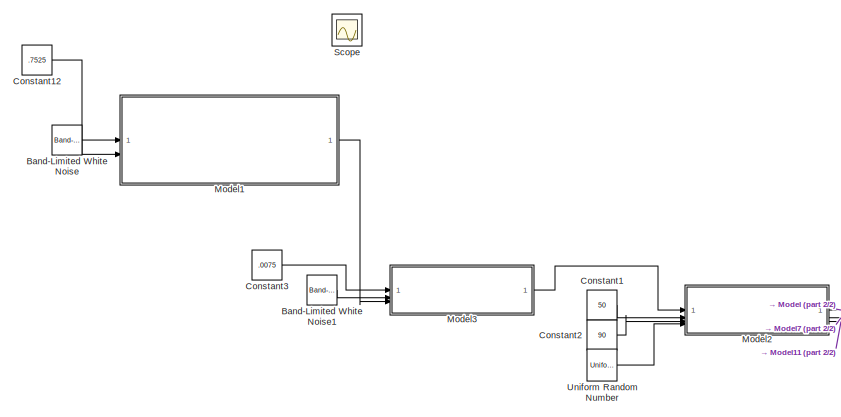
[diagram: root canvas - part 1/2, top left region]
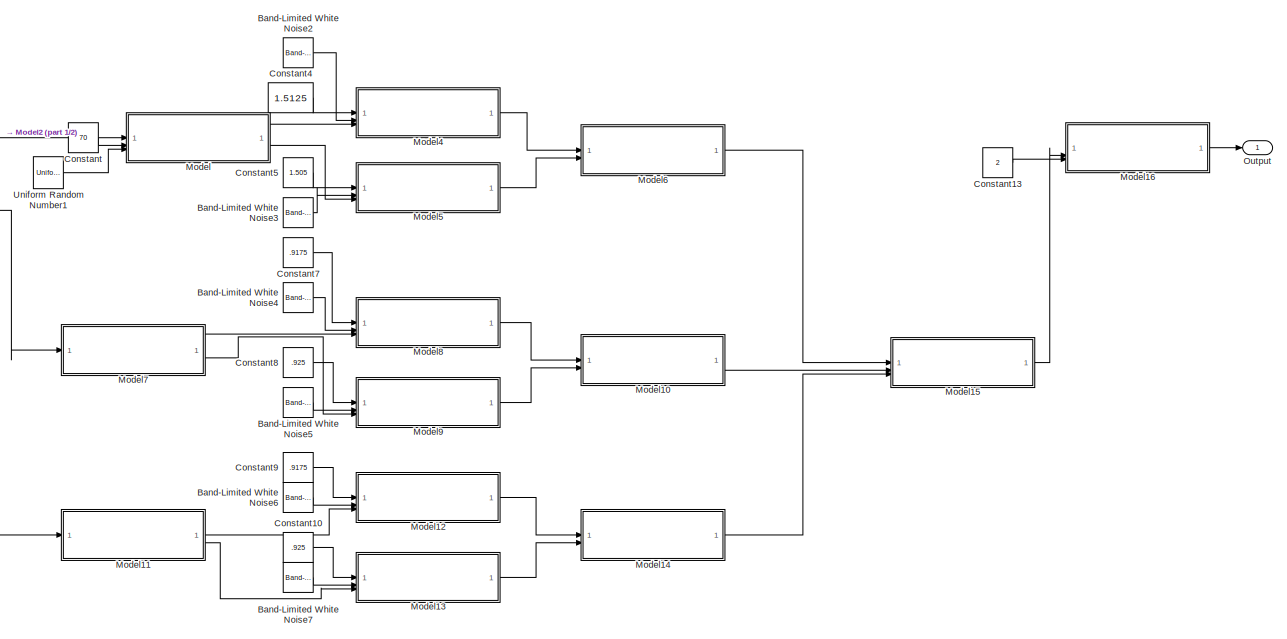
[diagram: root canvas - part 2/2, right side, full height]
MODEL slx_aa888e258abc
KIND model
CONFIG AbsTol = auto
CONFIG EnableMultiTasking = off
CONFIG FixedStep = auto
CONFIG MaxStep = auto
CONFIG MinStep = auto
CONFIG RelTol = 1e-3
CONFIG SampleTimeConstraint = Unconstrained
CONFIG SolverName = VariableStepAuto
CONFIG StartTime = 0.0
CONFIG StopTime = 10.0
BLOCK [Reference] Band-Limited White Noise  REF=simulink/Sources/Band-Limited
White Noise
  SourceBlock = simulink/Sources/Band-Limited\nWhite Noise
  SourceType = Band-Limited White Noise.
BLOCK [Reference] Band-Limited White Noise1  REF=simulink/Sources/Band-Limited
White Noise
  SourceBlock = simulink/Sources/Band-Limited\nWhite Noise
  SourceType = Band-Limited White Noise.
BLOCK [Reference] Band-Limited White Noise2  REF=simulink/Sources/Band-Limited
White Noise
  SourceBlock = simulink/Sources/Band-Limited\nWhite Noise
  SourceType = Band-Limited White Noise.
BLOCK [Reference] Band-Limited White Noise3  REF=simulink/Sources/Band-Limited
White Noise
  SourceBlock = simulink/Sources/Band-Limited\nWhite Noise
  SourceType = Band-Limited White Noise.
BLOCK [Reference] Band-Limited White Noise4  REF=simulink/Sources/Band-Limited
White Noise
  SourceBlock = simulink/Sources/Band-Limited\nWhite Noise
  SourceType = Band-Limited White Noise.
BLOCK [Reference] Band-Limited White Noise5  REF=simulink/Sources/Band-Limited
White Noise
  SourceBlock = simulink/Sources/Band-Limited\nWhite Noise
  SourceType = Band-Limited White Noise.
BLOCK [Reference] Band-Limited White Noise6  REF=simulink/Sources/Band-Limited
White Noise
  SourceBlock = simulink/Sources/Band-Limited\nWhite Noise
  SourceType = Band-Limited White Noise.
BLOCK [Reference] Band-Limited White Noise7  REF=simulink/Sources/Band-Limited
White Noise
  SourceBlock = simulink/Sources/Band-Limited\nWhite Noise
  SourceType = Band-Limited White Noise.
BLOCK [Constant] Constant
  Value = 70
BLOCK [Constant] Constant1
  Value = 50
BLOCK [Constant] Constant10
  Value = .925
BLOCK [Constant] Constant12
  Value = .7525
BLOCK [Constant] Constant13
  Value = 2
BLOCK [Constant] Constant2
  Value = 90
BLOCK [Constant] Constant3
  Value = .0075
BLOCK [Constant] Constant4
  Value = 1.5125
BLOCK [Constant] Constant5
  Value = 1.505
BLOCK [Constant] Constant7
  Value = .9175
BLOCK [Constant] Constant8
  Value = .925
BLOCK [Constant] Constant9
  Value = .9175
BLOCK [ModelReference] Model
  ModelNameDialog = mseCaseOfTwo.slx
  ModelReferenceVersion = 3.9
BLOCK [ModelReference] Model1
  ModelNameDialog = mseDelay.slx
  ModelReferenceVersion = 3.3
BLOCK [ModelReference] Model10
  ModelNameDialog = mseSplitMuxOfTwo.slx
  ModelReferenceVersion = 3.2
BLOCK [ModelReference] Model11
  ModelNameDialog = msePardoSplitOfTwo.slx
  ModelReferenceVersion = 3.2
BLOCK [ModelReference] Model12
  ModelNameDialog = mseDelay.slx
  ModelReferenceVersion = 3.3
BLOCK [ModelReference] Model13
  ModelNameDialog = mseDelay.slx
  ModelReferenceVersion = 3.3
BLOCK [ModelReference] Model14
  ModelNameDialog = msePardolMuxOfTwo.slx
  ModelReferenceVersion = 3.3
BLOCK [ModelReference] Model15
  ModelNameDialog = mseCaseMuxOfThree.slx
  ModelReferenceVersion = 3.1
BLOCK [ModelReference] Model16
  ModelNameDialog = mseLoop.slx
  ModelReferenceVersion = 3.1
BLOCK [ModelReference] Model2
  ModelNameDialog = mseCaseOfThree.slx
  ModelReferenceVersion = 3.7
BLOCK [ModelReference] Model3
  ModelNameDialog = mseDelay.slx
  ModelReferenceVersion = 3.3
BLOCK [ModelReference] Model4
  ModelNameDialog = mseDelay.slx
  ModelReferenceVersion = 3.3
BLOCK [ModelReference] Model5
  ModelNameDialog = mseDelay.slx
  ModelReferenceVersion = 3.3
BLOCK [ModelReference] Model6
  ModelNameDialog = mseCaseMuxOfTwo.slx
  ModelReferenceVersion = 3.0
BLOCK [ModelReference] Model7
  ModelNameDialog = msePardoSplitOfTwo.slx
  ModelReferenceVersion = 3.2
BLOCK [ModelReference] Model8
  ModelNameDialog = mseDelay.slx
  ModelReferenceVersion = 3.3
BLOCK [ModelReference] Model9
  ModelNameDialog = mseDelay.slx
  ModelReferenceVersion = 3.3
BLOCK [Outport] Output
BLOCK [Scope] Scope
  Floating = off
  IOType = viewer
  NumInputPorts = 1
  ScopeSpecificationString = Simulink.scopes.TimeScopeBlockCfg('CurrentConfiguration', extmgr.ConfigurationSet(extmgr.Configuration('Core','General UI',true),extmgr.Configuration('Core','Source UI',true),extmgr.Configuration('Sources','WiredSimulink',true),extmgr.Configuration('Visuals','Time Domain',true,'SerializedDisplays',{struct('MinYLimReal','3.13689','MaxYLimReal','4.80452','YLabelReal','','MinYLimMag','3.13689','MaxYL...<+1597ch>
BLOCK [UniformRandomNumber] Uniform Random Number
  Maximum = 100
  Minimum = 0
  SampleTime = 0.1
BLOCK [UniformRandomNumber] Uniform Random Number1
  Maximum = 100
  Minimum = 0
  SampleTime = 0.1
LINE Band-Limited White Noise1:1 -> Model3:2
LINE Band-Limited White Noise2:1 -> Model4:2
LINE Band-Limited White Noise3:1 -> Model5:2
LINE Band-Limited White Noise4:1 -> Model8:2
LINE Band-Limited White Noise5:1 -> Model9:2
LINE Band-Limited White Noise6:1 -> Model12:2
LINE Band-Limited White Noise7:1 -> Model13:2
LINE Band-Limited White Noise:1 -> Model1:2
LINE Constant10:1 -> Model13:1
LINE Constant12:1 -> Model1:1
LINE Constant13:1 -> Model16:3
LINE Constant1:1 -> Model2:2
LINE Constant2:1 -> Model2:3
LINE Constant3:1 -> Model3:1
LINE Constant4:1 -> Model4:1
LINE Constant5:1 -> Model5:1
LINE Constant7:1 -> Model8:1
LINE Constant8:1 -> Model9:1
LINE Constant9:1 -> Model12:1
LINE Constant:1 -> Model:2
LINE Model10:1 -> Model15:2
LINE Model11:1 -> Model12:3
LINE Model11:2 -> Model13:3
LINE Model12:1 -> Model14:1
LINE Model13:1 -> Model14:2
LINE Model14:1 -> Model15:3
LINE Model15:1 -> Model16:2
LINE Model16:1 -> Output:1
LINE Model1:1 -> Model3:3
LINE Model2:1 -> Model:1
LINE Model2:2 -> Model7:1
LINE Model2:3 -> Model11:1
LINE Model3:1 -> Model2:1
LINE Model4:1 -> Model6:1
LINE Model5:1 -> Model6:2
LINE Model6:1 -> Model15:1
LINE Model7:1 -> Model8:3
LINE Model7:2 -> Model9:3
LINE Model8:1 -> Model10:1
LINE Model9:1 -> Model10:2
LINE Model:1 -> Model4:3
LINE Model:2 -> Model5:3
LINE Uniform Random Number1:1 -> Model:3
LINE Uniform Random Number:1 -> Model2:4
